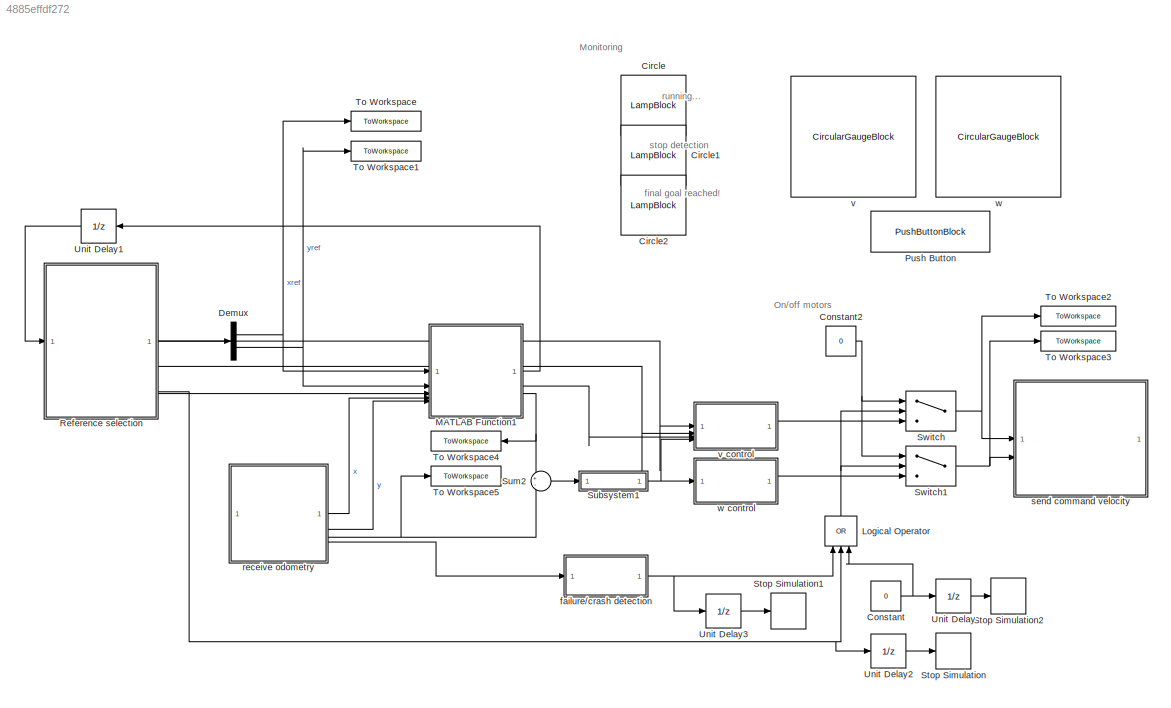
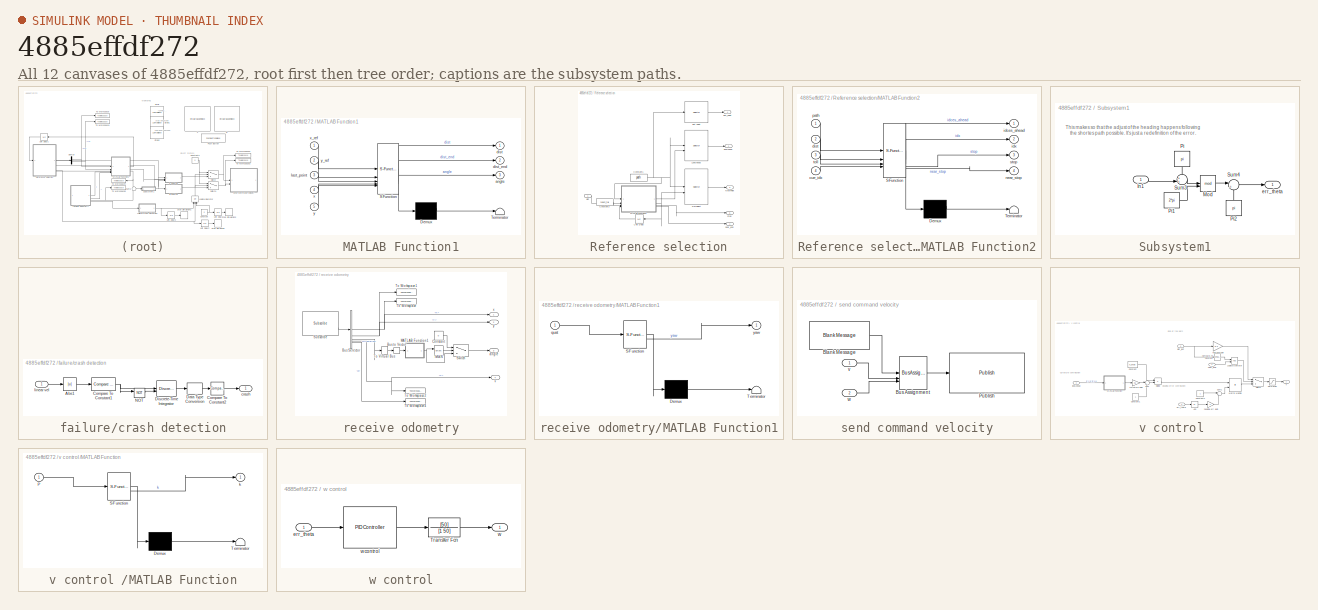
[diagram: thumbnail index - all 12 canvases of the model, root first then tree order]
MODEL slx_4885effdf272
KIND model
CONFIG AbsTol = auto
CONFIG EnableMultiTasking = off
CONFIG FixedStep = 1/f_sim
CONFIG MaxStep = auto
CONFIG MinStep = auto
CONFIG RelTol = 1e-3
CONFIG SampleTimeConstraint = Unconstrained
CONFIG SolverName = FixedStepAuto
CONFIG StartTime = 0.0
CONFIG StopTime = inf
WORKSPACE source: MATLAB code (in-file)
WORKSPACE v_max = 0.6
WORKSPACE max_yaw = 1.82
WORKSPACE f_sim = 1000
BLOCK [LampBlock] Circle
  Icon = Circle
  LabelPosition = Hide
BLOCK [LampBlock] Circle1
  Icon = Circle
  LabelPosition = Hide
BLOCK [LampBlock] Circle2
  Icon = Circle
  LabelPosition = Hide
BLOCK [Constant] Constant
  Value = 0
BLOCK [Constant] Constant2
  Value = 0
BLOCK [Demux] Demux
  Outputs = 2
BLOCK [Logic] Logical Operator
  AllPortsSameDT = off
  Inputs = 3
  NameLocation = right
  Operator = OR
  OutDataTypeStr = boolean
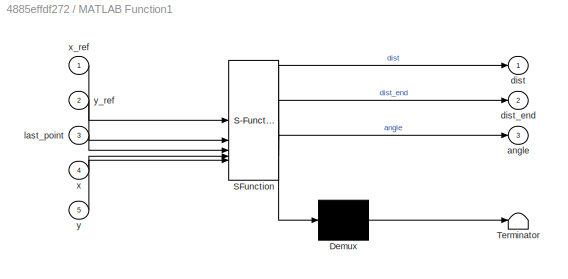
BLOCK [SubSystem] MATLAB Function1
  ErrorFcn = Stateflow.Translate.translate
  PermitHierarchicalResolution = ExplicitOnly
  SFBlockType = MATLAB Function
  TreatAsAtomicUnit = on
BLOCK [Demux] MATLAB Function1/ Demux 
  Outputs = 1
BLOCK [S-Function] MATLAB Function1/ SFunction 
  EnableBusSupport = on
  FunctionName = sf_sfun
  PortCounts = [5 4]
  SFcnIsStateOwnerBlock = off
  SFunctionDeploymentMode = off
  Tag = Stateflow S-Function 1
BLOCK [Terminator] MATLAB Function1/ Terminator 
BLOCK [Outport] MATLAB Function1/angle
  Port = 3
BLOCK [Outport] MATLAB Function1/dist
BLOCK [Outport] MATLAB Function1/dist_end
  Port = 2
BLOCK [Inport] MATLAB Function1/last_point
  Port = 3
BLOCK [Inport] MATLAB Function1/x
  Port = 4
BLOCK [Inport] MATLAB Function1/x_ref
BLOCK [Inport] MATLAB Function1/y
  Port = 5
BLOCK [Inport] MATLAB Function1/y_ref
  Port = 2
BLOCK [PushButtonBlock] Push Button
  ButtonText = manual stop (hold)
  IconAlignment = Center
  IconColor = On
  OffValue = 0.000000
BLOCK [SubSystem] Reference selection
BLOCK [Constant] Reference selection/Constant1
  Value = path
BLOCK [Constant] Reference selection/Constant3
  Value = reach_toll
BLOCK [Selector] Reference selection/LookAhead
  IndexOptions = Index vector (port),Select all
  Indices = [1 3],[1:2]
  NumberOfDimensions = 2
  OutputSizes = 1,1
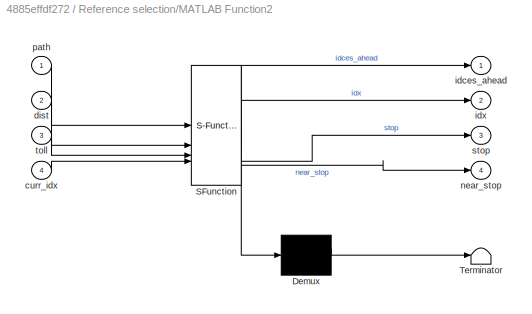
BLOCK [SubSystem] Reference selection/MATLAB Function2
  ErrorFcn = Stateflow.Translate.translate
  PermitHierarchicalResolution = ExplicitOnly
  SFBlockType = MATLAB Function
  TreatAsAtomicUnit = on
BLOCK [Demux] Reference selection/MATLAB Function2/ Demux 
  Outputs = 1
BLOCK [S-Function] Reference selection/MATLAB Function2/ SFunction 
  EnableBusSupport = on
  FunctionName = sf_sfun
  PortCounts = [4 5]
  SFcnIsStateOwnerBlock = off
  SFunctionDeploymentMode = off
  Tag = Stateflow S-Function 3
BLOCK [Terminator] Reference selection/MATLAB Function2/ Terminator 
BLOCK [Inport] Reference selection/MATLAB Function2/curr_idx
  Port = 4
BLOCK [Inport] Reference selection/MATLAB Function2/dist
  Port = 2
BLOCK [Outport] Reference selection/MATLAB Function2/idces_ahead
BLOCK [Outport] Reference selection/MATLAB Function2/idx
  Port = 2
BLOCK [Outport] Reference selection/MATLAB Function2/near_stop
  Port = 4
BLOCK [Inport] Reference selection/MATLAB Function2/path
BLOCK [Outport] Reference selection/MATLAB Function2/stop
  Port = 3
BLOCK [Inport] Reference selection/MATLAB Function2/toll
  Port = 3
BLOCK [Outport] Reference selection/NextPoint
  Port = 3
BLOCK [Selector] Reference selection/RefSelect
  IndexOptions = Starting index (port),Select all
  Indices = [1 3],[1:2]
  NumberOfDimensions = 2
  OutputSizes = 1,1
BLOCK [UnitDelay] Reference selection/Unit Delay
  HasFrameUpgradeWarning = on
  NameLocation = top
  SampleTime = -1
BLOCK [Inport] Reference selection/dist
  NameLocation = top
BLOCK [Selector] Reference selection/last point
  IndexOptions = Index vector (dialog),Select all
  Indices = length(path),[1:2]
  NumberOfDimensions = 2
  OutputSizes = 1,1
BLOCK [Outport] Reference selection/last_point
  Port = 4
BLOCK [Outport] Reference selection/lookAhead
  Port = 2
BLOCK [Outport] Reference selection/near_end
BLOCK [Outport] Reference selection/stop
  Port = 5
BLOCK [Stop] Stop Simulation
BLOCK [Stop] Stop Simulation1
BLOCK [Stop] Stop Simulation2
BLOCK [SubSystem] Subsystem1
BLOCK [Inport] Subsystem1/In1
BLOCK [Math] Subsystem1/Mod
  Operator = mod
BLOCK [Constant] Subsystem1/Pi
  NameLocation = left
  OutDataTypeStr = Inherit: Inherit via back propagation
  Value = pi
BLOCK [Constant] Subsystem1/Pi1
  OutDataTypeStr = Inherit: Inherit via back propagation
  Value = 2*pi
BLOCK [Constant] Subsystem1/Pi2
  NameLocation = right
  OutDataTypeStr = Inherit: Inherit via back propagation
  Value = pi
BLOCK [Sum] Subsystem1/Sum3
  Inputs = ++|
BLOCK [Sum] Subsystem1/Sum4
  Inputs = |+-
BLOCK [Outport] Subsystem1/err_theta
BLOCK [Sum] Sum2
  Inputs = +-
BLOCK [Switch] Switch
  Criteria = u2 ~= 0
  InputSameDT = off
  SaturateOnIntegerOverflow = off
BLOCK [Switch] Switch1
  Criteria = u2 ~= 0
  InputSameDT = off
  SaturateOnIntegerOverflow = off
BLOCK [ToWorkspace] To Workspace
  FixptAsFi = on
  MaxDataPoints = inf
  SampleTime = -1
  Save2DSignal = 2-D array (concatenate along first dimension)
  VariableName = x_ref
BLOCK [ToWorkspace] To Workspace1
  FixptAsFi = on
  MaxDataPoints = inf
  SampleTime = -1
  Save2DSignal = 2-D array (concatenate along first dimension)
  VariableName = y_ref
BLOCK [ToWorkspace] To Workspace2
  FixptAsFi = on
  MaxDataPoints = inf
  SampleTime = -1
  Save2DSignal = 2-D array (concatenate along first dimension)
  VariableName = v_cmd
BLOCK [ToWorkspace] To Workspace3
  FixptAsFi = on
  MaxDataPoints = inf
  SampleTime = -1
  Save2DSignal = 2-D array (concatenate along first dimension)
  VariableName = w_cmd
BLOCK [ToWorkspace] To Workspace4
  FixptAsFi = on
  MaxDataPoints = inf
  SampleTime = -1
  Save2DSignal = 2-D array (concatenate along first dimension)
  VariableName = theta_ref
BLOCK [ToWorkspace] To Workspace5
  FixptAsFi = on
  MaxDataPoints = inf
  SampleTime = -1
  Save2DSignal = 2-D array (concatenate along first dimension)
  VariableName = theta
BLOCK [UnitDelay] Unit Delay
  HasFrameUpgradeWarning = on
  SampleTime = 0.5
BLOCK [UnitDelay] Unit Delay1
  HasFrameUpgradeWarning = on
  NameLocation = top
  SampleTime = -1
BLOCK [UnitDelay] Unit Delay2
  HasFrameUpgradeWarning = on
  SampleTime = 2
BLOCK [UnitDelay] Unit Delay3
  HasFrameUpgradeWarning = on
  SampleTime = 0.5
BLOCK [SubSystem] failure//crash detection
BLOCK [Abs] failure//crash detection/Abs1
  SaturateOnIntegerOverflow = off
BLOCK [Reference] failure//crash detection/Compare To Constant1  REF=simulink/Logic and Bit
Operations/Compare
To Constant
  SourceBlock = simulink/Logic and Bit\nOperations/Compare\nTo Constant
  SourceType = Compare To Constant
BLOCK [Reference] failure//crash detection/Compare To Constant2  REF=simulink/Logic and Bit
Operations/Compare
To Constant
  SourceBlock = simulink/Logic and Bit\nOperations/Compare\nTo Constant
  SourceType = Compare To Constant
BLOCK [DataTypeConversion] failure//crash detection/Data Type Conversion
  RndMeth = Floor
  SaturateOnIntegerOverflow = off
BLOCK [DiscreteIntegrator] failure//crash detection/Discrete-Time Integrator
  ExternalReset = rising
  ICPrevOutput = DiscIntNeverNeededParam
  ICPrevScaledInput = DiscIntNeverNeededParam
  InitialConditionSetting = Auto
  SampleTime = 0.1
BLOCK [Logic] failure//crash detection/NOT
  AllPortsSameDT = off
  IconShape = distinctive
  Operator = NOT
  OutDataTypeStr = boolean
BLOCK [Outport] failure//crash detection/crash
BLOCK [Inport] failure//crash detection/linear vel
BLOCK [SubSystem] receive odometry
BLOCK [BusSelector] receive odometry/Bus Selector
  OutputSignals = Pose.Pose.Position.X,Pose.Pose.Position.Y,Pose.Pose.Orientation,Twist.Twist.Linear.X,Twist.Twist.Angular.Z
BLOCK [BusToVector] receive odometry/Bus to Vector
BLOCK [Constant] receive odometry/Constant
  Value = 0
BLOCK [RelationalOperator] receive odometry/IsNaN
  InputSameDT = off
  Operator = isNaN
  OutDataTypeStr = boolean
  RndMeth = Simplest
BLOCK [SubSystem] receive odometry/MATLAB Function1
  ErrorFcn = Stateflow.Translate.translate
  PermitHierarchicalResolution = ExplicitOnly
  SFBlockType = MATLAB Function
  TreatAsAtomicUnit = on
BLOCK [Demux] receive odometry/MATLAB Function1/ Demux 
  Outputs = 1
BLOCK [S-Function] receive odometry/MATLAB Function1/ SFunction 
  EnableBusSupport = on
  FunctionName = sf_sfun
  PortCounts = [1 2]
  SFcnIsStateOwnerBlock = off
  SFunctionDeploymentMode = off
  Tag = Stateflow S-Function 4
BLOCK [Terminator] receive odometry/MATLAB Function1/ Terminator 
BLOCK [Inport] receive odometry/MATLAB Function1/quat
BLOCK [Outport] receive odometry/MATLAB Function1/yaw
BLOCK [Reference] receive odometry/Subscribe  REF=robotlib/Subscribe
  SourceBlock = robotlib/Subscribe
  SourceType = ROS Subscribe
BLOCK [Switch] receive odometry/Switch
  Criteria = u2 ~= 0
  InputSameDT = off
  SaturateOnIntegerOverflow = off
BLOCK [SignalConversion] receive odometry/To Virtual Bus
  ConversionOutput = Virtual bus
  OverrideOpt = off
BLOCK [ToWorkspace] receive odometry/To Workspace
  FixptAsFi = on
  MaxDataPoints = inf
  NameLocation = top
  SampleTime = -1
  Save2DSignal = 2-D array (concatenate along first dimension)
  VariableName = x
BLOCK [ToWorkspace] receive odometry/To Workspace1
  FixptAsFi = on
  MaxDataPoints = inf
  NameLocation = top
  SampleTime = -1
  Save2DSignal = 2-D array (concatenate along first dimension)
  VariableName = y
BLOCK [ToWorkspace] receive odometry/To Workspace2
  FixptAsFi = on
  MaxDataPoints = inf
  NameLocation = top
  SampleTime = -1
  Save2DSignal = 2-D array (concatenate along first dimension)
  VariableName = v
BLOCK [ToWorkspace] receive odometry/To Workspace4
  FixptAsFi = on
  MaxDataPoints = inf
  SampleTime = -1
  Save2DSignal = 2-D array (concatenate along first dimension)
  VariableName = w
BLOCK [Outport] receive odometry/angle
  Port = 3
BLOCK [Outport] receive odometry/v
  Port = 4
BLOCK [Outport] receive odometry/x
  NameLocation = top
BLOCK [Outport] receive odometry/y
  Port = 2
BLOCK [SubSystem] send command velocity
BLOCK [Reference] send command velocity/Blank Message  REF=robotlib/Blank Message
  SourceBlock = robotlib/Blank Message
  SourceType = ROS Blank Message
BLOCK [BusAssignment] send command velocity/Bus Assignment
  AssignedSignals = Linear.X,Angular.Z
BLOCK [Reference] send command velocity/Publish  REF=robotlib/Publish
  SourceBlock = robotlib/Publish
  SourceType = ROS Publish
BLOCK [Inport] send command velocity/v
BLOCK [Inport] send command velocity/w
  Port = 2
BLOCK [CircularGaugeBlock] v
  LabelPosition = Hide
  ScaleMax = 0.8
BLOCK [SubSystem] v control 
  NameLocation = top
BLOCK [Abs] v control /Abs
  SaturateOnIntegerOverflow = off
BLOCK [Reference] v control /Compare To Constant  REF=simulink/Logic and Bit
Operations/Compare
To Constant
  SourceBlock = simulink/Logic and Bit\nOperations/Compare\nTo Constant
  SourceType = Compare To Constant
BLOCK [Constant] v control /Constant
  Value = v_max
BLOCK [Constant] v control /Constant1
BLOCK [Constant] v control /Constant2
BLOCK [Product] v control /Divide
  Inputs = */
BLOCK [Logic] v control /Logical Operator
  AllPortsSameDT = off
  OutDataTypeStr = boolean
BLOCK [SubSystem] v control /MATLAB Function
  ErrorFcn = Stateflow.Translate.translate
  PermitHierarchicalResolution = ExplicitOnly
  SFBlockType = MATLAB Function
  TreatAsAtomicUnit = on
BLOCK [Demux] v control /MATLAB Function/ Demux 
  Outputs = 1
BLOCK [S-Function] v control /MATLAB Function/ SFunction 
  EnableBusSupport = on
  FunctionName = sf_sfun
  PortCounts = [1 2]
  SFcnIsStateOwnerBlock = off
  SFunctionDeploymentMode = off
  Tag = Stateflow S-Function 2
BLOCK [Terminator] v control /MATLAB Function/ Terminator 
BLOCK [Inport] v control /MATLAB Function/P
BLOCK [Outport] v control /MATLAB Function/k
BLOCK [Product] v control /Matrix Multiply
BLOCK [Saturate] v control /Saturation
  LowerLimit = 0
  UpperLimit = v_max
BLOCK [Sum] v control /Sum
  Inputs = |++
BLOCK [Sum] v control /Sum1
  Inputs = |+-
BLOCK [Switch] v control /Switch
  Criteria = u2 > Threshold
  InputSameDT = off
  SaturateOnIntegerOverflow = off
BLOCK [Gain] v control /curvature gain
  Gain = 0.1
BLOCK [Inport] v control /dist_last
  Port = 3
BLOCK [Inport] v control /err_theta
  Port = 4
BLOCK [Gain] v control /final goal gain
  Gain = 0.1
  NameLocation = top
BLOCK [Gain] v control /heading err gain
BLOCK [Inport] v control /lookAhead
  Port = 2
BLOCK [Inport] v control /near_end
BLOCK [Outport] v control /v
BLOCK [CircularGaugeBlock] w
  LabelPosition = Hide
  ScaleMax = 2
  ScaleMin = -2
BLOCK [SubSystem] w control
BLOCK [TransferFcn] w control/Transfer Fcn
  Denominator = [1 50]
  Numerator = [50]
BLOCK [Inport] w control/err_theta
BLOCK [Outport] w control/w
BLOCK [Reference] w control/w control  REF=slpidlib/PID Controller
  LibrarySourceBlock = simulink/Continuous/PID Controller
  SourceBlock = slpidlib/PID Controller
  SourceType = PID 1dof
ANNOTATION (root): Monitoring
ANNOTATION (root): On/off motors
ANNOTATION (root): final goal reached!
ANNOTATION (root): running...
ANNOTATION (root): stop detection
ANNOTATION Subsystem1: This makes so that the adjust of the heading happens following the shortes path possible. It's just a redefinition of the error.
ANNOTATION v control : Curvature contribution
ANNOTATION v control : End of the path
ANNOTATION v control : Heading error contribution
NET Constant2:1 -> Switch1:1, Switch:1
NET Constant:1 -> Logical Operator:3, Unit Delay:1
NET Demux:1 -> MATLAB Function1:1, To Workspace:1
NET Demux:2 -> MATLAB Function1:2, To Workspace1:1
NET Logical Operator:1 -> Switch1:2, Switch:2
LINE MATLAB Function1:1 -> Unit Delay1:1
LINE MATLAB Function1:2 -> v control :3
NET MATLAB Function1:3 -> Sum2:1, To Workspace4:1
NET Reference selection/Constant1:1 -> Reference selection/LookAhead:1, Reference selection/MATLAB Function2:1, Reference selection/RefSelect:1, Reference selection/last point:1
LINE Reference selection/Constant3:1 -> Reference selection/MATLAB Function2:3
LINE Reference selection/LookAhead:1 -> Reference selection/lookAhead:1
LINE Reference selection/MATLAB Function2:1 -> Reference selection/LookAhead:2
NET Reference selection/MATLAB Function2:2 -> Reference selection/RefSelect:2, Reference selection/Unit Delay:1
LINE Reference selection/MATLAB Function2:3 -> Reference selection/stop:1
LINE Reference selection/MATLAB Function2:4 -> Reference selection/near_end:1
LINE Reference selection/RefSelect:1 -> Reference selection/NextPoint:1
LINE Reference selection/Unit Delay:1 -> Reference selection/MATLAB Function2:4
LINE Reference selection/dist:1 -> Reference selection/MATLAB Function2:2
LINE Reference selection/last point:1 -> Reference selection/last_point:1
LINE Reference selection:1 -> v control :1
LINE Reference selection:2 -> v control :2
LINE Reference selection:3 -> Demux:1
LINE Reference selection:4 -> MATLAB Function1:3
NET Reference selection:5 -> Logical Operator:2, Unit Delay2:1
LINE Subsystem1/In1:1 -> Subsystem1/Sum3:2
LINE Subsystem1/Mod:1 -> Subsystem1/Sum4:1
LINE Subsystem1/Pi1:1 -> Subsystem1/Mod:2
LINE Subsystem1/Pi2:1 -> Subsystem1/Sum4:2
LINE Subsystem1/Pi:1 -> Subsystem1/Sum3:1
LINE Subsystem1/Sum3:1 -> Subsystem1/Mod:1
LINE Subsystem1/Sum4:1 -> Subsystem1/err_theta:1
NET Subsystem1:1 -> v control :4, w control:1
LINE Sum2:1 -> Subsystem1:1
NET Switch1:1 -> To Workspace3:1, send command velocity:2
NET Switch:1 -> To Workspace2:1, send command velocity:1
LINE Unit Delay1:1 -> Reference selection:1
LINE Unit Delay2:1 -> Stop Simulation:1
LINE Unit Delay3:1 -> Stop Simulation1:1
LINE Unit Delay:1 -> Stop Simulation2:1
LINE failure//crash detection/Abs1:1 -> failure//crash detection/Compare To Constant1:1
NET failure//crash detection/Compare To Constant1:1 -> failure//crash detection/Discrete-Time Integrator:1, failure//crash detection/NOT:1
LINE failure//crash detection/Compare To Constant2:1 -> failure//crash detection/crash:1
LINE failure//crash detection/Data Type Conversion:1 -> failure//crash detection/Compare To Constant2:1
LINE failure//crash detection/Discrete-Time Integrator:1 -> failure//crash detection/Data Type Conversion:1
LINE failure//crash detection/NOT:1 -> failure//crash detection/Discrete-Time Integrator:2
LINE failure//crash detection/linear vel:1 -> failure//crash detection/Abs1:1
NET failure//crash detection:1 -> Logical Operator:1, Unit Delay3:1
NET receive odometry/Bus Selector:1 -> receive odometry/To Workspace:1, receive odometry/x:1
NET receive odometry/Bus Selector:2 -> receive odometry/To Workspace1:1, receive odometry/y:1
LINE receive odometry/Bus Selector:3 -> receive odometry/To Virtual Bus:1
NET receive odometry/Bus Selector:4 -> receive odometry/To Workspace2:1, receive odometry/v:1
LINE receive odometry/Bus Selector:5 -> receive odometry/To Workspace4:1
LINE receive odometry/Bus to Vector:1 -> receive odometry/MATLAB Function1:1
LINE receive odometry/Constant:1 -> receive odometry/Switch:1
LINE receive odometry/IsNaN:1 -> receive odometry/Switch:2
NET receive odometry/MATLAB Function1:1 -> receive odometry/IsNaN:1, receive odometry/Switch:3
LINE receive odometry/Subscribe:2 -> receive odometry/Bus Selector:1
LINE receive odometry/Switch:1 -> receive odometry/angle:1
LINE receive odometry/To Virtual Bus:1 -> receive odometry/Bus to Vector:1
LINE receive odometry:1 -> MATLAB Function1:4
LINE receive odometry:2 -> MATLAB Function1:5
NET receive odometry:3 -> Sum2:2, To Workspace5:1
LINE receive odometry:4 -> failure//crash detection:1
LINE send command velocity/Blank Message:1 -> send command velocity/Bus Assignment:1
LINE send command velocity/Bus Assignment:1 -> send command velocity/Publish:1
LINE send command velocity/v:1 -> send command velocity/Bus Assignment:2
LINE send command velocity/w:1 -> send command velocity/Bus Assignment:3
LINE v control /Abs:1 -> v control /heading err gain:1
LINE v control /Compare To Constant:1 -> v control /Logical Operator:1
LINE v control /Constant1:1 -> v control /Sum:2
LINE v control /Constant2:1 -> v control /Sum1:1
LINE v control /Constant:1 -> v control /Divide:1
LINE v control /Divide:1 -> v control /Matrix Multiply:1
LINE v control /Logical Operator:1 -> v control /Switch:2
LINE v control /MATLAB Function:1 -> v control /curvature gain:1
LINE v control /Matrix Multiply:1 -> v control /Switch:3
LINE v control /Saturation:1 -> v control /v:1
LINE v control /Sum1:1 -> v control /Matrix Multiply:2
LINE v control /Sum:1 -> v control /Divide:2
LINE v control /Switch:1 -> v control /Saturation:1
LINE v control /curvature gain:1 -> v control /Sum:1
NET v control /dist_last:1 -> v control /Compare To Constant:1, v control /final goal gain:1
LINE v control /err_theta:1 -> v control /Abs:1
LINE v control /final goal gain:1 -> v control /Switch:1
LINE v control /heading err gain:1 -> v control /Sum1:2
LINE v control /lookAhead:1 -> v control /MATLAB Function:1
LINE v control /near_end:1 -> v control /Logical Operator:2
LINE v control :1 -> Switch:3
LINE w control/Transfer Fcn:1 -> w control/w:1
LINE w control/err_theta:1 -> w control/w control:1
LINE w control/w control:1 -> w control/Transfer Fcn:1
LINE w control:1 -> Switch1:3
note: NET lines group one-source signal fan-out (src -> all destinations, sorted); 1:1 wires keep LINE
CHART MATLAB Function1 states=1 transitions=1
  STATE_LABEL 'eML_blk_kernel()'
  STATE_LABEL 'SCRIPT:\nfunction [dist,dist_end,angle]=DistAngle(x_ref,y_ref,last_point,x,y)\n\n% Distance and orientation wrt the next reference point\ndelta_x=x_ref-x;\ndelta_y=y_ref-y;\ndist=sqrt(delta_x.^2+delta_y.^2);\nangle=atan2(delta_y,delta_x);\n\n% Distance wrt the last point\nx_end=last_point(1);\ny_end=last_point(2);\ndist_end=sqrt((x_end-x).^2+(y_end-y).^2);\n\nend'
CHART v control /MATLAB Function states=1 transitions=1
  STATE_LABEL 'eML_blk_kernel()'
  STATE_LABEL 'SCRIPT:\nfunction k=Curvature(P)\n\n% Extract 3 future points coordinates\nx1=P(1,1);\nx2=P(2,1);\nx3=P(3,1);\ny1=P(1,2);\ny2=P(2,2);\ny3=P(3,2);\n\n% Curvature\nk=abs((x3-x2)*(y2-y1)-(x2-x1)*(y3-y2))/abs((x3-x2)^2+(y3-y2)^2)^(3/2);\n\nend\n'
CHART Reference selection/MATLAB Function2 states=1 transitions=1
  STATE_LABEL 'eML_blk_kernel()'
  STATE_LABEL 'SCRIPT:\nfunction [idces_ahead,idx,stop,near_stop]=RefIdxSelect(path,dist,toll,curr_idx)\n\n% For heading control \nstop=false;\nnear_stop=false;\nN_max=length(path);\nif curr_idx<N_max && curr_idx>0\n    if dist<toll\n        idx=min(curr_idx+3,N_max);\n    else\n        idx=curr_idx;\n    end\nelseif curr_idx==0\n    idx=1;\nelse \n    idx=N_max;\n    if dist<toll\n        stop=true;\n    end\nend\n\n% For linear vel...<+205ch>'
CHART receive odometry/MATLAB Function1 states=1 transitions=1
  STATE_LABEL 'eML_blk_kernel()'
  STATE_LABEL 'SCRIPT:\nfunction yaw=quat2yaw(quat)\n\nq=zeros(1,4);\n\nq(1)=quat(1);\nq(2)=quat(2);\nq(3)=quat(3);\nq(4)=quat(4);\n\neul=quat2eul(q);\n\nyaw=eul(3);\n\nend\n'
CHART  states=0 transitions=0
CHART  states=0 transitions=0
CHART  states=0 transitions=0
CHART  states=0 transitions=0
